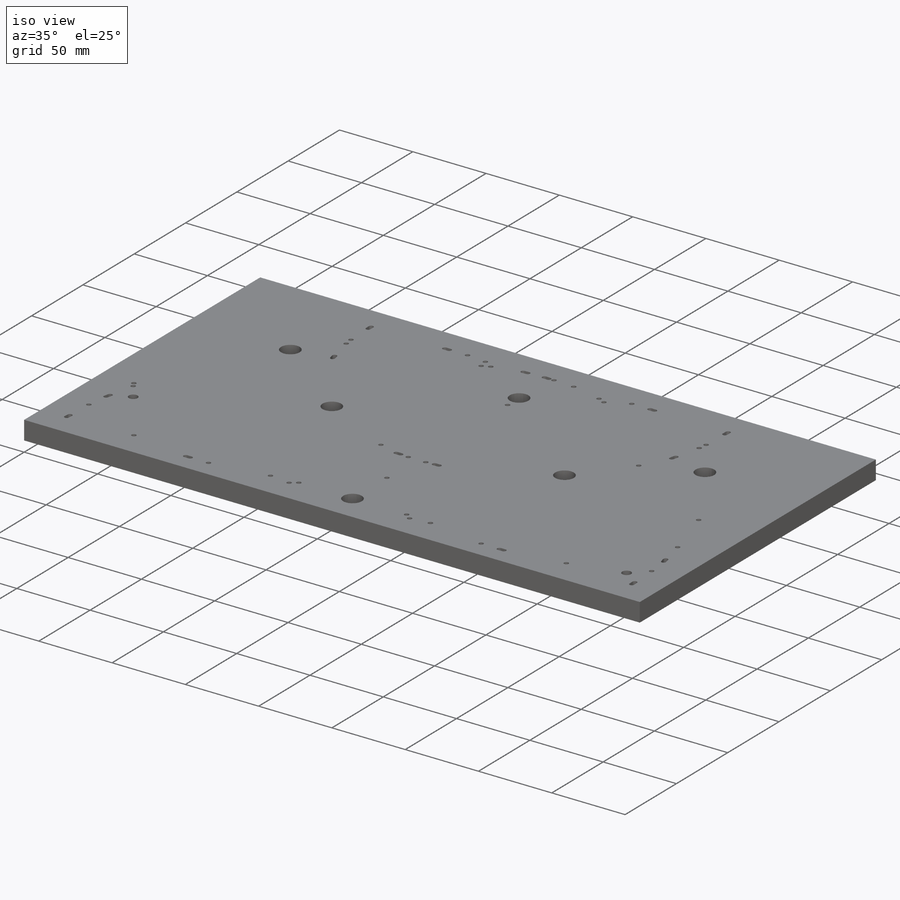
[diagram: iso view]
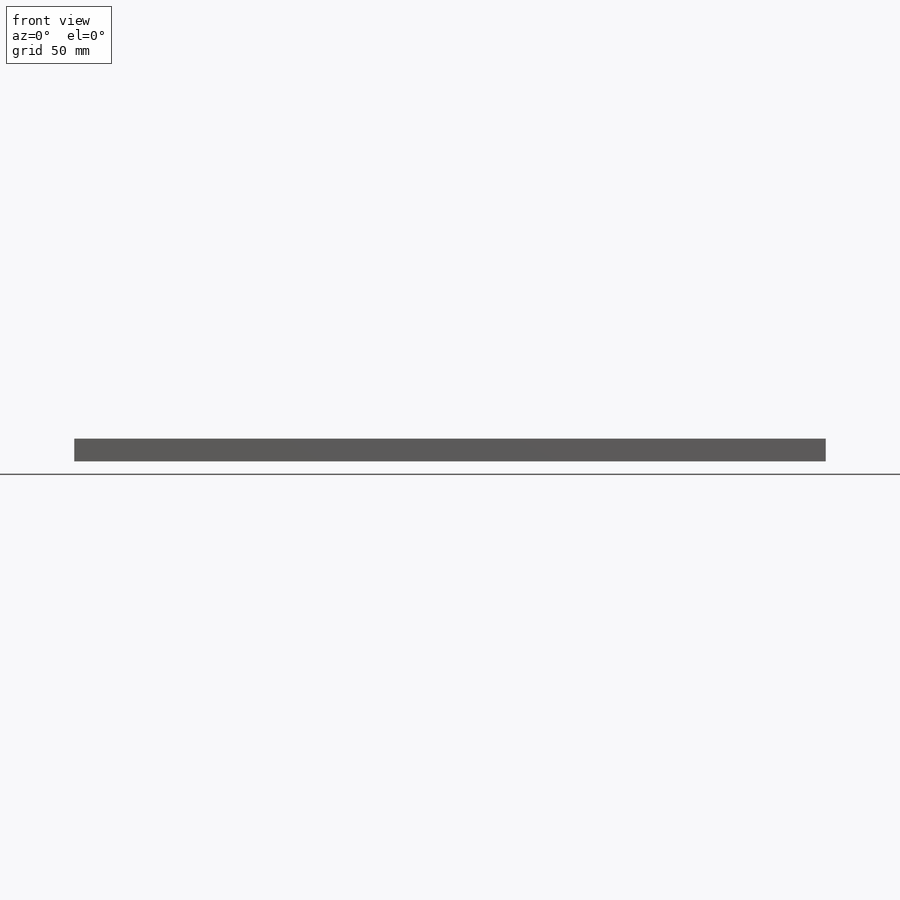
[diagram: front view]
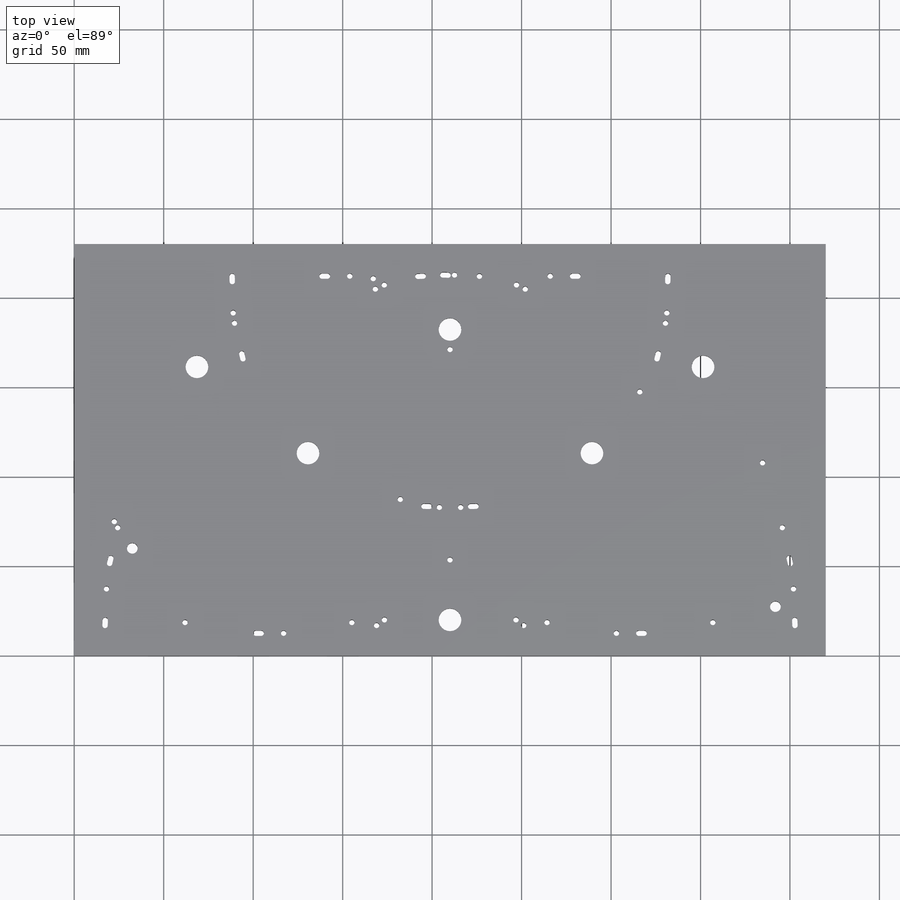
[diagram: top view]
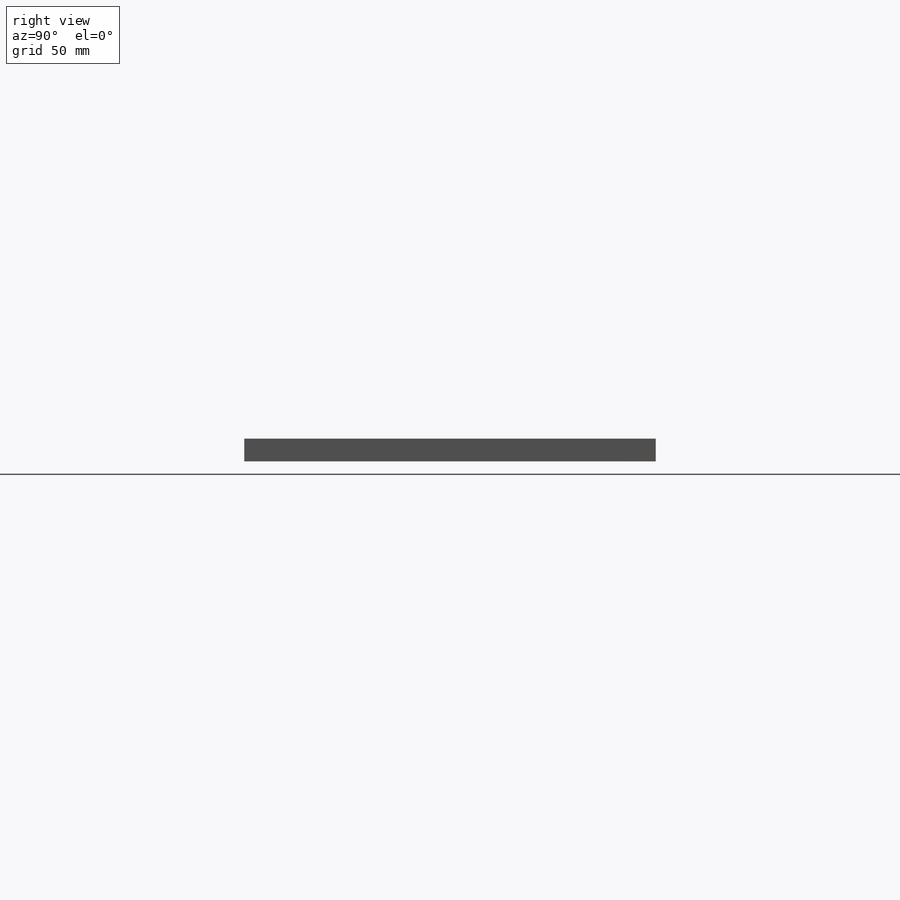
[diagram: right view]
SOLIDWORKS PART (.sldprt)
format: sldprt  version: not decoded by parser v0  size: 338,432 bytes
history: native  units: mm
features: sketch x4, cut_extrude x2, material x1, extrude x1 (+16 scaffold rows collapsed)
feature tree (24):
  scaffold x16  (default folders/planes/origin — collapsed)
  material  "Material <not specified>"
  sketch  "Sketch1"  dims[D1=420.0mm]
  extrude  "Boss-Extrude1"  Depth=12.7mm
  sketch  "Sketch3"
  sketch  "Sketch7"  dims[D1=3.0mm]
  sketch  "Sketch8"  dims[D1=105.0mm]
  cut_extrude  "Cut-Extrude1"  Depth=12.7mm
  cut_extrude  "Cut-Extrude2"  Depth=12.7mm
decode coverage: 6 of 7 modeling features carry decoded parameters
note: suppression state not decoded; provenance and decode notes live in map.json
